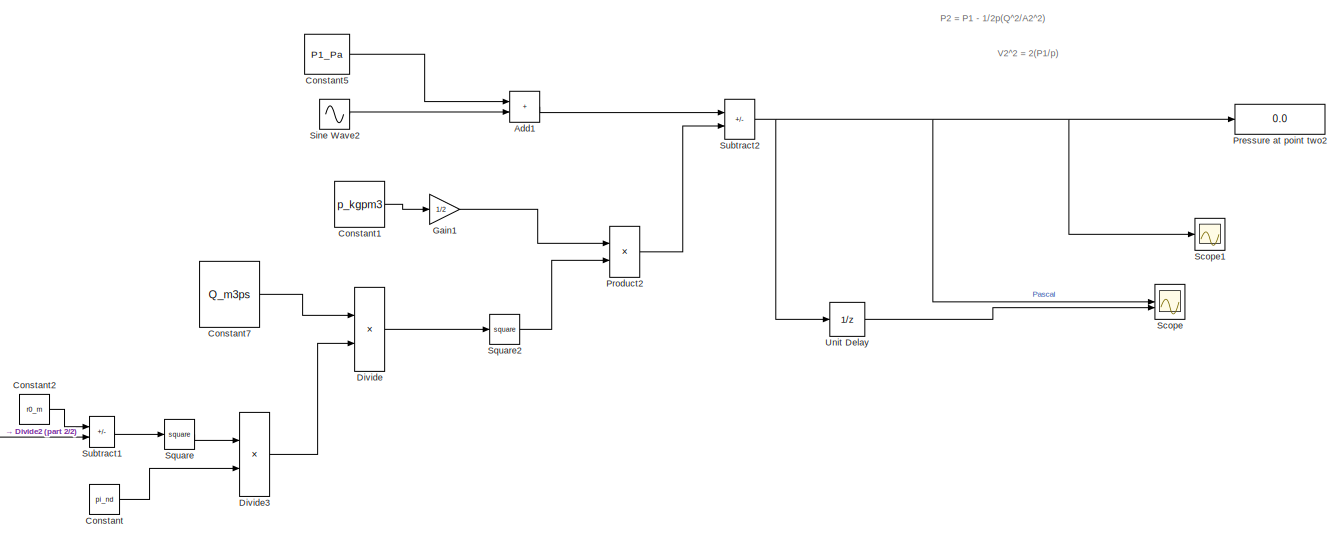
[diagram: root canvas - part 1/2, center side, full height]
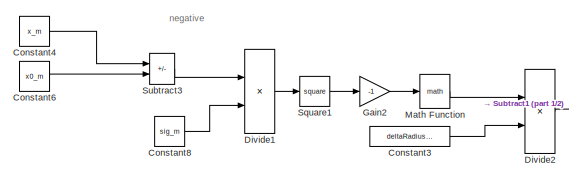
[diagram: root canvas - part 2/2, bottom left region]
MODEL slx_4559ca8d1c8c
KIND model
CONFIG AbsTol = auto
CONFIG EnableMultiTasking = off
CONFIG FixedStep = 0.01
CONFIG MaxStep = auto
CONFIG MinStep = auto
CONFIG RelTol = 1e-3
CONFIG SampleTimeConstraint = Unconstrained
CONFIG SolverName = FixedStepAuto
CONFIG StartTime = 0.0
CONFIG StopTime = 10.0
BLOCK [Sum] Add1
  IconShape = rectangular
BLOCK [Constant] Constant
  Value = pi_nd
BLOCK [Constant] Constant1
  Value = p_kgpm3
BLOCK [Constant] Constant2
  Value = r0_m
BLOCK [Constant] Constant3
  Value = deltaRadius_m
BLOCK [Constant] Constant4
  Value = x_m
BLOCK [Constant] Constant5
  Value = P1_Pa
BLOCK [Constant] Constant6
  Value = x0_m
BLOCK [Constant] Constant7
  Value = Q_m3ps
BLOCK [Constant] Constant8
  Value = sig_m
BLOCK [Product] Divide
  Inputs = */
BLOCK [Product] Divide1
  Inputs = */
BLOCK [Product] Divide2
  Inputs = **
BLOCK [Product] Divide3
  Inputs = **
BLOCK [Gain] Gain1
  Gain = 1/2
BLOCK [Gain] Gain2
  Gain = -1
BLOCK [Math] Math Function
BLOCK [Display] Pressure at point two2
  Decimation = 1
  Format = long
BLOCK [Product] Product2
BLOCK [Scope] Scope
  Floating = off
  NumInputPorts = 2
  ScopeSpecificationString = Simulink.scopes.TimeScopeBlockCfg('CurrentConfiguration', extmgr.ConfigurationSet(extmgr.Configuration('Core','General UI',true),extmgr.Configuration('Core','Source UI',true),extmgr.Configuration('Sources','WiredSimulink',true,'DataLoggingVariableName','ScopeData1'),extmgr.Configuration('Visuals','Time Domain',true,'SerializedDisplays',{struct('MinYLimReal','15984.5728','MaxYLimReal','15987.07279'...<+1577ch>
BLOCK [Scope] Scope1
  Floating = off
  NumInputPorts = 1
  ScopeSpecificationString = Simulink.scopes.TimeScopeBlockCfg('CurrentConfiguration', extmgr.ConfigurationSet(extmgr.Configuration('Core','General UI',true),extmgr.Configuration('Core','Source UI',true),extmgr.Configuration('Sources','WiredSimulink',true),extmgr.Configuration('Visuals','Time Domain',true,'SerializedDisplays',{struct('MinYLimReal','15984.5728','MaxYLimReal','15987.07279','YLabelReal','','MinYLimMag','15984.57...<+1520ch>
BLOCK [Sin] Sine Wave2
  SampleTime = 0
BLOCK [Math] Square
  Operator = square
BLOCK [Math] Square1
  Operator = square
BLOCK [Math] Square2
  Operator = square
BLOCK [Sum] Subtract1
  IconShape = rectangular
  Inputs = +-
BLOCK [Sum] Subtract2
  IconShape = rectangular
  Inputs = +-
BLOCK [Sum] Subtract3
  IconShape = rectangular
  Inputs = +-
BLOCK [UnitDelay] Unit Delay
  HasFrameUpgradeWarning = on
  InitialCondition = 15985.82
  SampleTime = -1
ANNOTATION (root): P2 = P1 - 1/2p(Q^2/A2^2)
ANNOTATION (root): V2^2 = 2(P1/p)
ANNOTATION (root): negative
LINE Add1:1 -> Subtract2:1
LINE Constant1:1 -> Gain1:1
LINE Constant2:1 -> Subtract1:1
LINE Constant3:1 -> Divide2:2
LINE Constant4:1 -> Subtract3:1
LINE Constant5:1 -> Add1:1
LINE Constant6:1 -> Subtract3:2
LINE Constant7:1 -> Divide:1
LINE Constant8:1 -> Divide1:2
LINE Constant:1 -> Divide3:2
LINE Divide1:1 -> Square1:1
LINE Divide2:1 -> Subtract1:2
LINE Divide3:1 -> Divide:2
LINE Divide:1 -> Square2:1
LINE Gain1:1 -> Product2:1
LINE Gain2:1 -> Math Function:1
LINE Math Function:1 -> Divide2:1
LINE Product2:1 -> Subtract2:2
LINE Sine Wave2:1 -> Add1:2
LINE Square1:1 -> Gain2:1
LINE Square2:1 -> Product2:2
LINE Square:1 -> Divide3:1
LINE Subtract1:1 -> Square:1
NET Subtract2:1 -> Pressure at point two2:1, Scope1:1, Scope:1, Unit Delay:1
LINE Subtract3:1 -> Divide1:1
LINE Unit Delay:1 -> Scope:2
note: NET lines group one-source signal fan-out (src -> all destinations, sorted); 1:1 wires keep LINE
